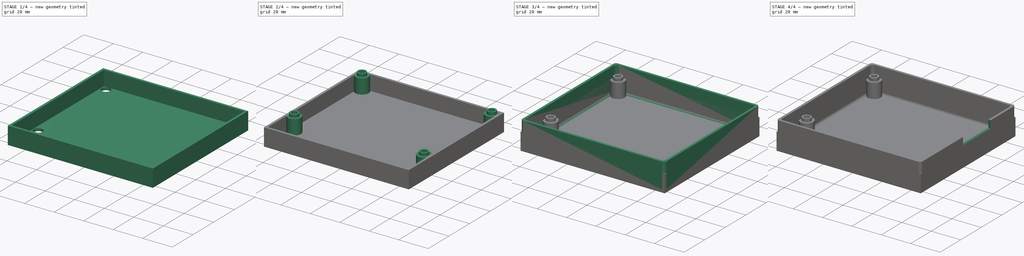
[diagram: build sequence overview — one tinted view per stage of 4, left to right]
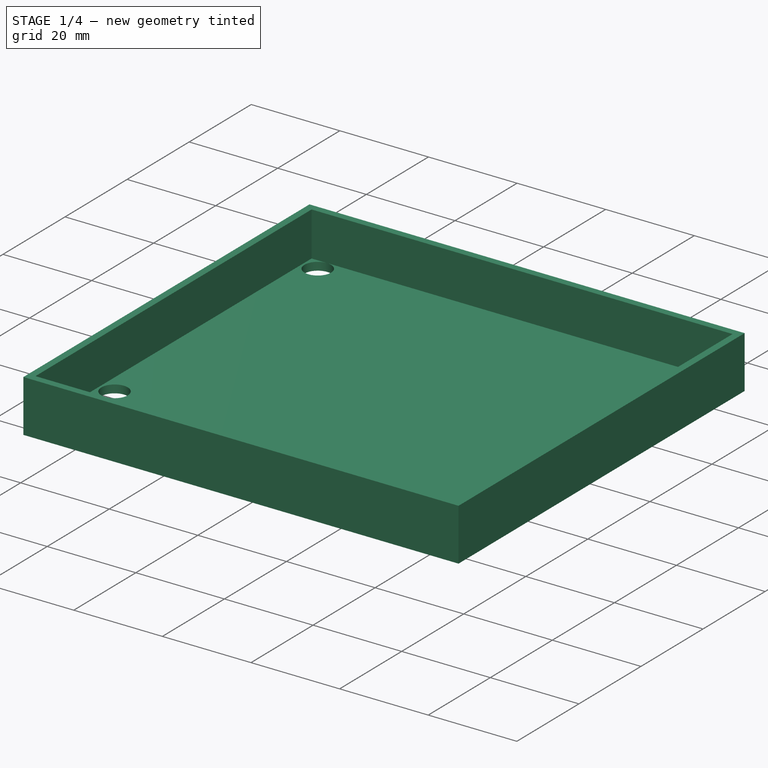
[diagram: stage 1 of 4 — iso view after this stage's code; geometry added in this stage tinted green]
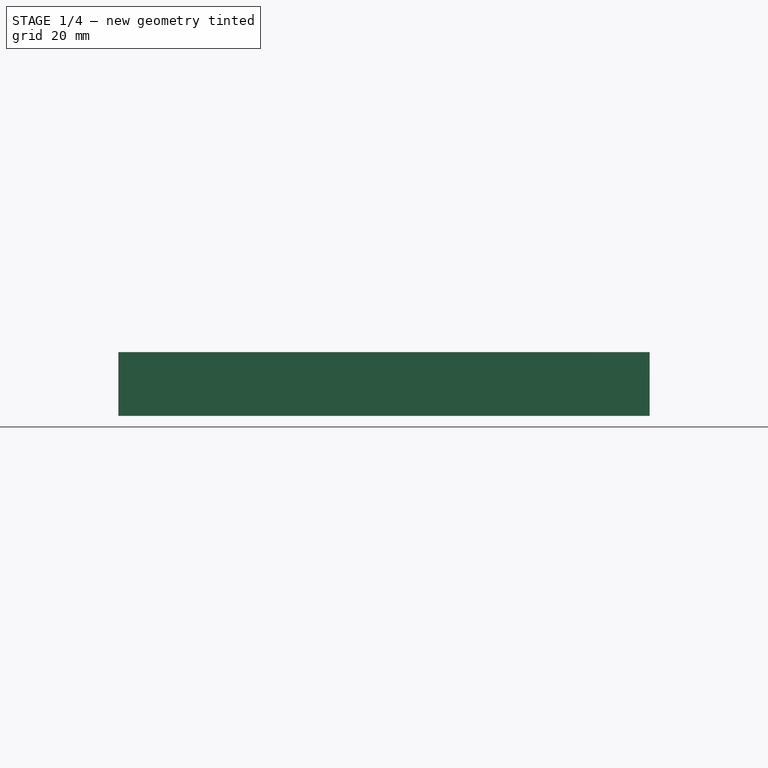
[diagram: stage 1 of 4 — front view after this stage's code; geometry added in this stage tinted green]
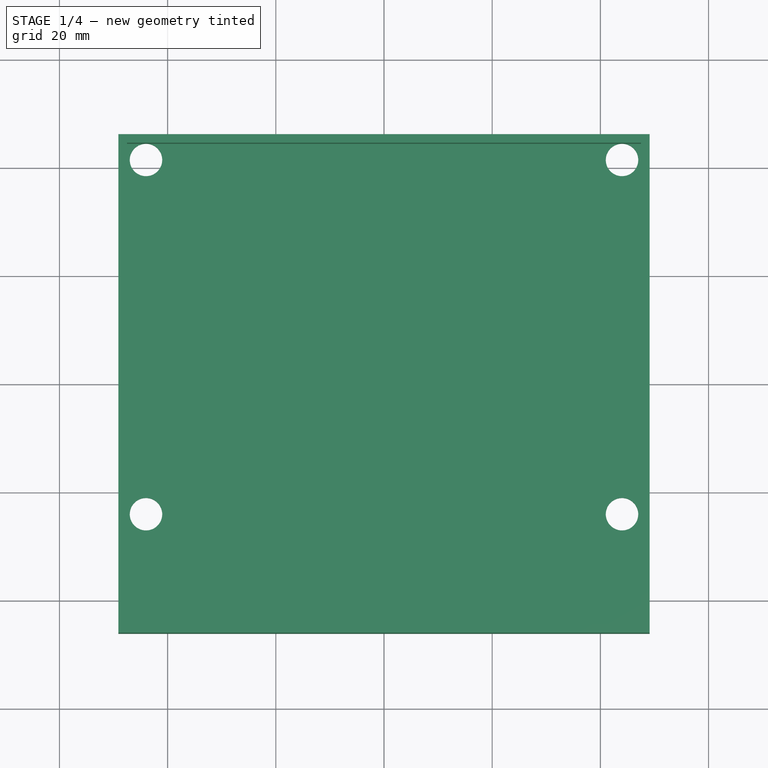
[diagram: stage 1 of 4 — top view after this stage's code; geometry added in this stage tinted green]
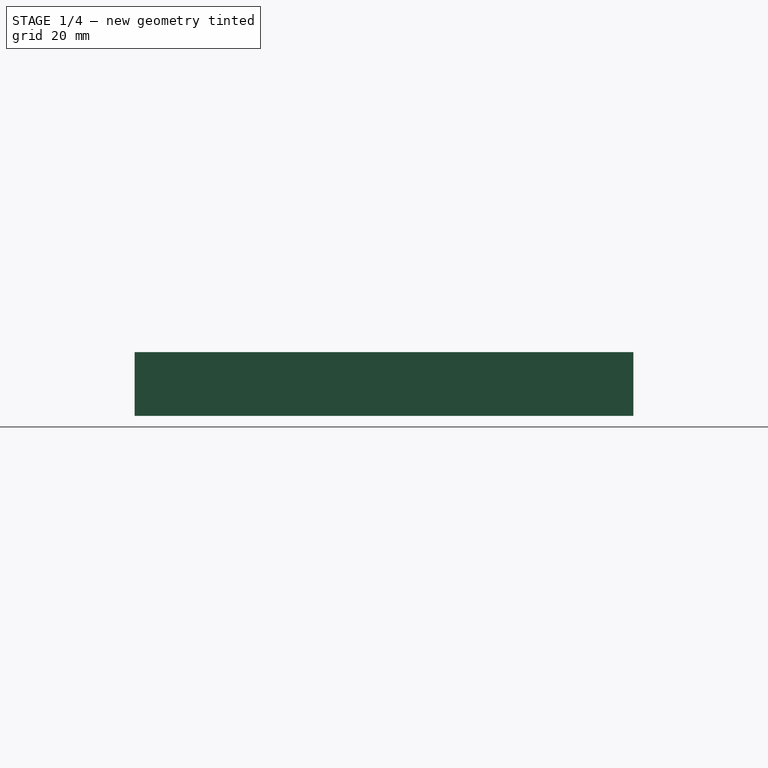
[diagram: stage 1 of 4 — right view after this stage's code; geometry added in this stage tinted green]
FCSTD DOCUMENT  (FreeCAD 0.19R24291 (Git))
Label: 12864_case_1b
License: All rights reserved
LicenseURL: http://en.wikipedia.org/wiki/All_rights_reserved
objects: Sketcher::SketchObject×9, PartDesign::Pad×8, App::DocumentObjectGroup×2, PartDesign::Body×2, Spreadsheet::Sheet×1, PartDesign::Fillet×1, PartDesign::Pocket×1, App::Part×1
note: 31 computed .brp shape members not serialized (recipe doc carries the construction recipe); baked Part::Feature solids carry a one-line shape summary decoded from their .brp

FEATURE [App::DocumentObjectGroup] Group001  label="Back"
FEATURE [Sketcher::SketchObject] Sketch007  label="backpanel"
  FullyConstrained = true
  MapMode = 5
  Support = -> [XY_Plane002]
  expr: Constraints[9] = <<Dimensions>>.PCBHeight / 2 - <<Dimensions>>.HoleDistanceTop
  expr: Constraints[29] = <<Dimensions>>.PCBWidth
  expr: Constraints[30] = <<Dimensions>>.PCBHeight
  expr: Constraints[19] = <<Dimensions>>.PCBWidth + <<Dimensions>>.PCBGap * 2 + <<Dimensions>>.WallThickness * 2
  expr: Constraints[20] = <<Dimensions>>.PCBHeight + <<Dimensions>>.PCBGap * 2 + <<Dimensions>>.WallThickness * 2
  expr: Constraints[40] = <<Dimensions>>.LCDWidth
  expr: Constraints[39] = <<Dimensions>>.LCDHeight
  expr: Constraints[10] = <<Dimensions>>.HoleDistanceV
  expr: Constraints[0] = <<Dimensions>>.HoleDistanceH
  sketch-geometry (18):
    g0: Circle CenterX=-44 CenterY=41.5 CenterZ=0 NormalX=0 NormalY=0 NormalZ=1 AngleXU=0 Radius=3
    g1: Circle CenterX=44 CenterY=41.5 CenterZ=0 NormalX=0 NormalY=0 NormalZ=1 AngleXU=0 Radius=3
    g2: Circle CenterX=44 CenterY=-24 CenterZ=0 NormalX=0 NormalY=0 NormalZ=1 AngleXU=0 Radius=3
    g3: Circle CenterX=-44 CenterY=-24 CenterZ=0 NormalX=0 NormalY=0 NormalZ=1 AngleXU=0 Radius=3
    g4: LineSegment StartX=-44 StartY=41.5 StartZ=0 EndX=44 EndY=41.5 EndZ=0
    g5: LineSegment StartX=-44 StartY=-24 StartZ=0 EndX=44 EndY=-24 EndZ=0
    g6: LineSegment StartX=-49.1 StartY=46.1 StartZ=0 EndX=49.1 EndY=46.1 EndZ=0
    g7: LineSegment StartX=49.1 StartY=46.1 StartZ=0 EndX=49.1 EndY=-46.1 EndZ=0
    g8: LineSegment StartX=49.1 StartY=-46.1 StartZ=0 EndX=-49.1 EndY=-46.1 EndZ=0
    g9: LineSegment StartX=-49.1 StartY=-46.1 StartZ=0 EndX=-49.1 EndY=46.1 EndZ=0
    g10: LineSegment StartX=-46.5 StartY=43.5 StartZ=0 EndX=46.5 EndY=43.5 EndZ=0
    g11: LineSegment StartX=46.5 StartY=43.5 StartZ=0 EndX=46.5 EndY=-43.5 EndZ=0
    g12: LineSegment StartX=46.5 StartY=-43.5 StartZ=0 EndX=-46.5 EndY=-43.5 EndZ=0
    g13: LineSegment StartX=-46.5 StartY=-43.5 StartZ=0 EndX=-46.5 EndY=43.5 EndZ=0
    g14: LineSegment StartX=-39 StartY=34.5 StartZ=0 EndX=39 EndY=34.5 EndZ=0
    g15: LineSegment StartX=39 StartY=34.5 StartZ=0 EndX=39 EndY=-16.5 EndZ=0
    g16: LineSegment StartX=39 StartY=-16.5 StartZ=0 EndX=-39 EndY=-16.5 EndZ=0
    g17: LineSegment StartX=-39 StartY=-16.5 StartZ=0 EndX=-39 EndY=34.5 EndZ=0
  constraints (51):
    c: DistanceX(g0,g1) = 88
    c: Coincident(g4,g0)
    c: Coincident(g4,g1)
    c: Coincident(g5,g3)
    c: Coincident(g5,g2)
    c: Equal(g4,g5)
    c: Equal(g0,g1)
    c: Equal(g1,g2)
    c: Equal(g2,g3)
    c: DistanceY(g-1,g0) = 41.5
    c: DistanceY(g3,g0) = 65.5
    c: Coincident(g6,g7)
    c: Coincident(g7,g8)
    c: Coincident(g8,g9)
    c: Coincident(g9,g6)
    c: Horizontal(g6)
    c: Horizontal(g8)
    c: Vertical(g7)
    c: Vertical(g9)
    c: DistanceX(g6,g6) = 98.2
    c: DistanceY(g9,g9) = 92.2
    c: Coincident(g10,g11)
    c: Coincident(g11,g12)
    c: Coincident(g12,g13)
    c: Coincident(g13,g10)
    c: Horizontal(g10)
    c: Horizontal(g12)
    c: Vertical(g11)
    c: Vertical(g13)
    c: DistanceX(g10,g10) = 93
    c: DistanceY(g13,g13) = 87
    c: Coincident(g14,g15)
    c: Coincident(g15,g16)
    c: Coincident(g16,g17)
    c: Coincident(g17,g14)
    c: Horizontal(g14)
    c: Horizontal(g16)
    c: Vertical(g15)
    c: Vertical(g17)
    c: DistanceY(g17,g17) = 51
    c: DistanceX(g14,g14) = 78
    c: DistanceY(g14,g10) = 9
    c: Symmetric(g0,g1,g-2)
    c: Symmetric(g3,g2,g-2)
    c: Symmetric(g12,g11,g-2)
    c: Symmetric(g6,g6,g-2)
    c: Symmetric(g6,g8,g-1)
    c: Symmetric(g10,g10,g-2)
    c: Symmetric(g10,g12,g-1)
    c: Symmetric(g14,g14,g-2)
    c: Radius(g0) = 3
FEATURE [PartDesign::Pad] Pad006
  AllowMultiFace = false
  Direction = (1,1,1)
  Length = 1.8
  Length2 = 100
  Profile = -> Sketch007
  Type = 0
  expr: Length = Spreadsheet.PanelThickness
FEATURE [Sketcher::SketchObject] Sketch005  label="backwalls"
  FullyConstrained = false
  MapMode = 5
  Placement = pos=(0,0,1.8) rot=(0,0,1;0rad)
  Support = -> [Pad006]
  expr: Constraints[10] = <<Dimensions>>.PCBWidth + 2 * <<Dimensions>>.PCBGap + 2 * <<Dimensions>>.WallThickness
  expr: Constraints[11] = <<Dimensions>>.PCBHeight + 2 * <<Dimensions>>.PCBGap + 2 * <<Dimensions>>.WallThickness
  expr: Constraints[22] = <<Dimensions>>.PCBWidth + 2 * <<Dimensions>>.PCBGap
  expr: Constraints[23] = <<Dimensions>>.PCBHeight + 2 * <<Dimensions>>.PCBGap
  sketch-geometry (8):
    g0: LineSegment StartX=-49.1 StartY=46.1 StartZ=0 EndX=49.1 EndY=46.1 EndZ=0
    g1: LineSegment StartX=49.1 StartY=46.1 StartZ=0 EndX=49.1 EndY=-46.1 EndZ=0
    g2: LineSegment StartX=49.1 StartY=-46.1 StartZ=0 EndX=-49.1 EndY=-46.1 EndZ=0
    g3: LineSegment StartX=-49.1 StartY=-46.1 StartZ=0 EndX=-49.1 EndY=46.1 EndZ=0
    g4: LineSegment StartX=-47.5 StartY=44.5 StartZ=0 EndX=47.5 EndY=44.5 EndZ=0
    g5: LineSegment StartX=47.5 StartY=44.5 StartZ=0 EndX=47.5 EndY=-44.5 EndZ=0
    g6: LineSegment StartX=47.5 StartY=-44.5 StartZ=0 EndX=-47.5 EndY=-44.5 EndZ=0
    g7: LineSegment StartX=-47.5 StartY=-44.5 StartZ=0 EndX=-47.5 EndY=44.5 EndZ=0
  constraints (24):
    c: Coincident(g0,g1)
    c: Coincident(g1,g2)
    c: Coincident(g2,g3)
    c: Coincident(g3,g0)
    c: Horizontal(g0)
    c: Horizontal(g2)
    c: Vertical(g1)
    c: Vertical(g3)
    c: Symmetric(g0,g0,g-2)
    c: Symmetric(g0,g2,g-1)
    c: DistanceX(g0,g0) = 98.2
    c: DistanceY(g3,g3) = 92.2
    c: Coincident(g4,g5)
    c: Coincident(g5,g6)
    c: Coincident(g6,g7)
    c: Coincident(g7,g4)
    c: Horizontal(g4)
    c: Horizontal(g6)
    c: Vertical(g5)
    c: Vertical(g7)
    c: Symmetric(g4,g4,g-2)
    c: Symmetric(g4,g6,g-1)
    c: DistanceX(g4,g4) = 95
    c: DistanceY(g7,g7) = 89
FEATURE [PartDesign::Pad] Pad007
  AllowMultiFace = false
  BaseFeature = -> Pad006
  Direction = (1,1,1)
  Length = 10
  Length2 = 100
  Profile = -> Sketch005
  Type = 0
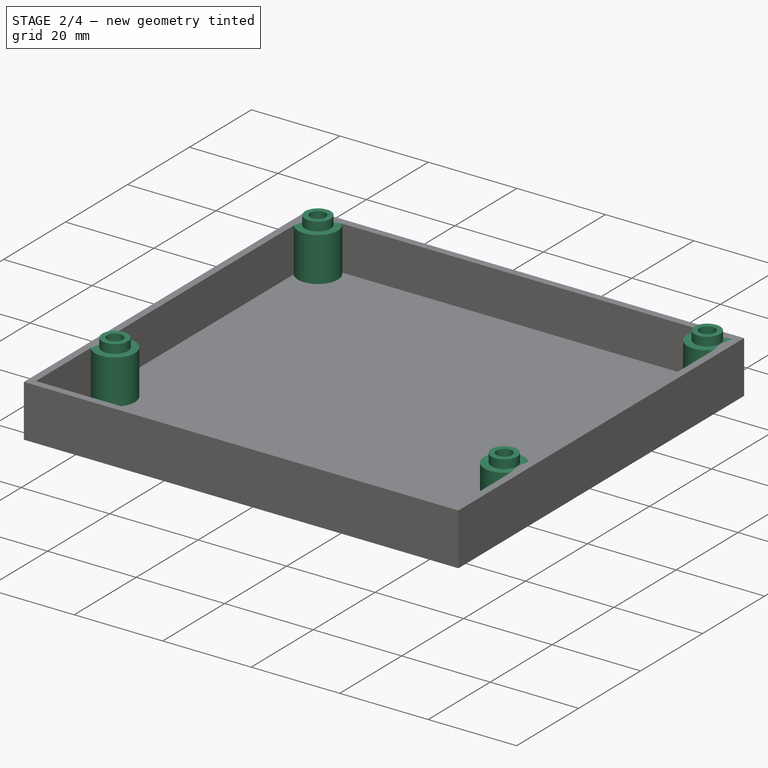
[diagram: stage 2 of 4 — iso view after this stage's code; geometry added in this stage tinted green]
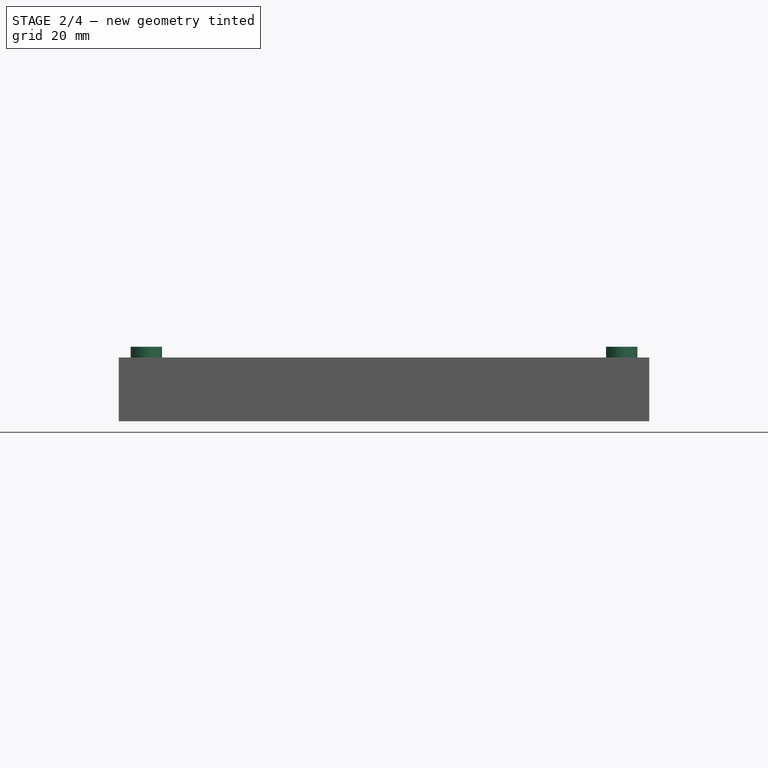
[diagram: stage 2 of 4 — front view after this stage's code; geometry added in this stage tinted green]
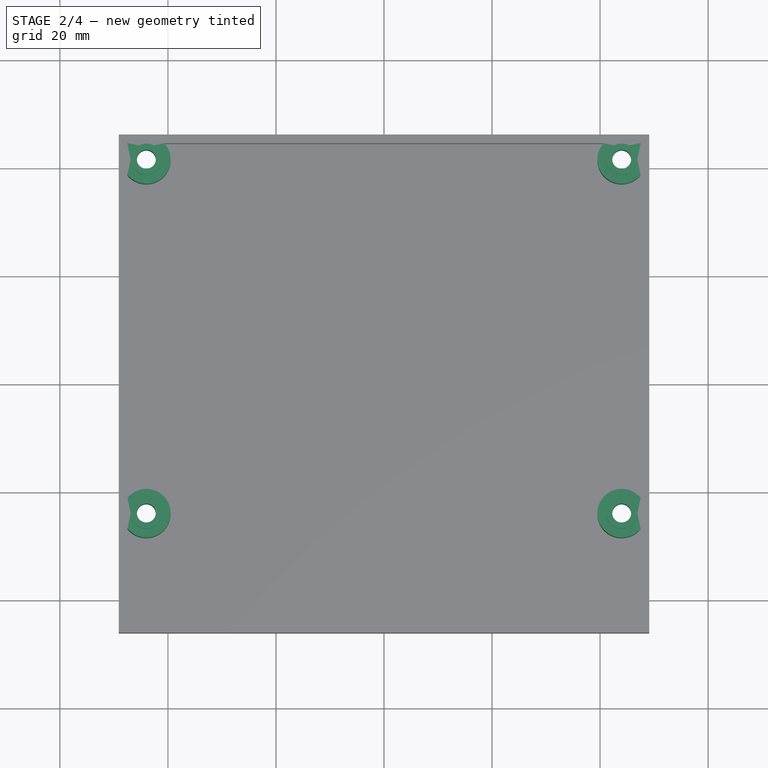
[diagram: stage 2 of 4 — top view after this stage's code; geometry added in this stage tinted green]
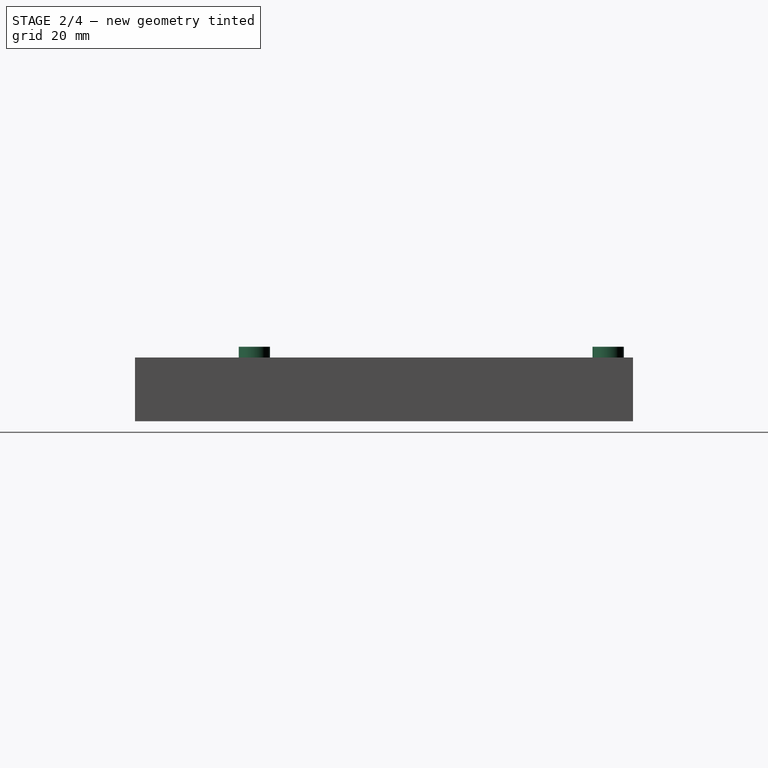
[diagram: stage 2 of 4 — right view after this stage's code; geometry added in this stage tinted green]
FEATURE [Sketcher::SketchObject] Sketch008  label="backnuts1"
  FullyConstrained = false
  MapMode = 5
  Placement = pos=(0,0,1.8) rot=(0,0,1;0rad)
  Support = -> [Pad007]
  expr: Constraints[20] = <<Dimensions>>.PCBHeight / 2 - <<Dimensions>>.HoleDistanceTop
  expr: Constraints[21] = <<Dimensions>>.HoleDistanceV
  expr: Constraints[2] = <<Dimensions>>.HoleDistanceH
  sketch-geometry (10):
    g0: Circle CenterX=-44 CenterY=41.5 CenterZ=0 NormalX=0 NormalY=0 NormalZ=1 AngleXU=0 Radius=4.5
    g1: Circle CenterX=44 CenterY=41.5 CenterZ=0 NormalX=0 NormalY=0 NormalZ=1 AngleXU=0 Radius=4.5
    g2: Circle CenterX=44 CenterY=-24 CenterZ=0 NormalX=0 NormalY=0 NormalZ=1 AngleXU=0 Radius=4.5
    g3: Circle CenterX=-44 CenterY=-24 CenterZ=0 NormalX=0 NormalY=0 NormalZ=1 AngleXU=0 Radius=4.5
    g4: LineSegment StartX=-44 StartY=41.5 StartZ=0 EndX=44 EndY=41.5 EndZ=0
    g5: LineSegment StartX=-44 StartY=-24 StartZ=0 EndX=44 EndY=-24 EndZ=0
    g6: Circle CenterX=-44 CenterY=41.5 CenterZ=0 NormalX=0 NormalY=0 NormalZ=1 AngleXU=0 Radius=3
    g7: Circle CenterX=44 CenterY=41.5 CenterZ=0 NormalX=0 NormalY=0 NormalZ=1 AngleXU=0 Radius=3
    g8: Circle CenterX=44 CenterY=-24 CenterZ=0 NormalX=0 NormalY=0 NormalZ=1 AngleXU=0 Radius=3
    g9: Circle CenterX=-44 CenterY=-24 CenterZ=0 NormalX=0 NormalY=0 NormalZ=1 AngleXU=0 Radius=3
  constraints (22):
    c: Symmetric(g0,g1,g-2)
    c: Symmetric(g3,g2,g-2)
    c: DistanceX(g0,g1) = 88
    c: Coincident(g4,g0)
    c: Coincident(g4,g1)
    c: Coincident(g5,g3)
    c: Coincident(g5,g2)
    c: Equal(g4,g5)
    c: Equal(g0,g1)
    c: Equal(g1,g2)
    c: Equal(g2,g3)
    c: Radius(g0) = 4.5
    c: Coincident(g6,g0)
    c: Coincident(g7,g1)
    c: Coincident(g8,g2)
    c: Coincident(g9,g3)
    c: Equal(g6,g7)
    c: Equal(g7,g8)
    c: Equal(g8,g9)
    c: Radius(g6) = 3
    c: DistanceY(g-1,g0) = 41.5
    c: DistanceY(g3,g0) = 65.5
FEATURE [PartDesign::Pad] Pad008
  AllowMultiFace = false
  BaseFeature = -> Pad007
  Direction = (1,1,1)
  Length = 1.2
  Length2 = 100
  Profile = -> Sketch008
  Type = 0
  expr: Length = 3 - <<Dimensions>>.PanelThickness
FEATURE [Sketcher::SketchObject] Sketch009  label="backnuts2"
  FullyConstrained = false
  MapMode = 5
  Placement = pos=(0,0,3) rot=(0,0,1;0rad)
  Support = -> [Pad008]
  expr: Constraints[20] = <<Dimensions>>.PCBHeight / 2 - <<Dimensions>>.HoleDistanceTop
  expr: Constraints[21] = <<Dimensions>>.HoleDistanceV
  expr: Constraints[2] = <<Dimensions>>.HoleDistanceH
  sketch-geometry (10):
    g0: Circle CenterX=-44 CenterY=41.5 CenterZ=0 NormalX=0 NormalY=0 NormalZ=1 AngleXU=0 Radius=4.5
    g1: Circle CenterX=44 CenterY=41.5 CenterZ=0 NormalX=0 NormalY=0 NormalZ=1 AngleXU=0 Radius=4.5
    g2: Circle CenterX=44 CenterY=-24 CenterZ=0 NormalX=0 NormalY=0 NormalZ=1 AngleXU=0 Radius=4.5
    g3: Circle CenterX=-44 CenterY=-24 CenterZ=0 NormalX=0 NormalY=0 NormalZ=1 AngleXU=0 Radius=4.5
    g4: LineSegment StartX=-44 StartY=41.5 StartZ=0 EndX=44 EndY=41.5 EndZ=0
    g5: LineSegment StartX=-44 StartY=-24 StartZ=0 EndX=44 EndY=-24 EndZ=0
    g6: Circle CenterX=-44 CenterY=41.5 CenterZ=0 NormalX=0 NormalY=0 NormalZ=1 AngleXU=0 Radius=1.75
    g7: Circle CenterX=44 CenterY=41.5 CenterZ=0 NormalX=0 NormalY=0 NormalZ=1 AngleXU=0 Radius=1.75
    g8: Circle CenterX=44 CenterY=-24 CenterZ=0 NormalX=0 NormalY=0 NormalZ=1 AngleXU=0 Radius=1.75
    g9: Circle CenterX=-44 CenterY=-24 CenterZ=0 NormalX=0 NormalY=0 NormalZ=1 AngleXU=0 Radius=1.75
  constraints (22):
    c: Symmetric(g0,g1,g-2)
    c: Symmetric(g3,g2,g-2)
    c: DistanceX(g0,g1) = 88
    c: Coincident(g4,g0)
    c: Coincident(g4,g1)
    c: Coincident(g5,g3)
    c: Coincident(g5,g2)
    c: Equal(g4,g5)
    c: Equal(g0,g1)
    c: Equal(g1,g2)
    c: Equal(g2,g3)
    c: Radius(g0) = 4.5
    c: Coincident(g6,g0)
    c: Coincident(g7,g1)
    c: Coincident(g8,g2)
    c: Coincident(g9,g3)
    c: Equal(g6,g7)
    c: Equal(g7,g8)
    c: Equal(g8,g9)
    c: Radius(g6) = 1.75
    c: DistanceY(g-1,g0) = 41.5
    c: DistanceY(g3,g0) = 65.5
FEATURE [PartDesign::Pad] Pad009
  AllowMultiFace = false
  BaseFeature = -> Pad008
  Direction = (1,1,1)
  Length = 10
  Length2 = 100
  Profile = -> Sketch009
  Type = 3
  UpToFace = -> Pad008 [Face20]
FEATURE [Sketcher::SketchObject] Sketch006  label="backnuts3"
  FullyConstrained = false
  MapMode = 5
  Placement = pos=(0,0,11.8) rot=(0,0,1;0rad)
  Support = -> [Pad009]
  expr: Constraints[2] = <<Dimensions>>.HoleDistanceH
  expr: Constraints[20] = <<Dimensions>>.PCBHeight / 2 - <<Dimensions>>.HoleDistanceTop
  expr: Constraints[21] = <<Dimensions>>.HoleDistanceV
  sketch-geometry (10):
    g0: Circle CenterX=-44 CenterY=41.5 CenterZ=0 NormalX=0 NormalY=0 NormalZ=1 AngleXU=0 Radius=2.9
    g1: Circle CenterX=44 CenterY=41.5 CenterZ=0 NormalX=0 NormalY=0 NormalZ=1 AngleXU=0 Radius=2.9
    g2: Circle CenterX=44 CenterY=-24 CenterZ=0 NormalX=0 NormalY=0 NormalZ=1 AngleXU=0 Radius=2.9
    g3: Circle CenterX=-44 CenterY=-24 CenterZ=0 NormalX=0 NormalY=0 NormalZ=1 AngleXU=0 Radius=2.9
    g4: LineSegment StartX=-44 StartY=41.5 StartZ=0 EndX=44 EndY=41.5 EndZ=0
    g5: LineSegment StartX=-44 StartY=-24 StartZ=0 EndX=44 EndY=-24 EndZ=0
    g6: Circle CenterX=-44 CenterY=41.5 CenterZ=0 NormalX=0 NormalY=0 NormalZ=1 AngleXU=0 Radius=1.75
    g7: Circle CenterX=44 CenterY=41.5 CenterZ=0 NormalX=0 NormalY=0 NormalZ=1 AngleXU=0 Radius=1.75
    g8: Circle CenterX=44 CenterY=-24 CenterZ=0 NormalX=0 NormalY=0 NormalZ=1 AngleXU=0 Radius=1.75
    g9: Circle CenterX=-44 CenterY=-24 CenterZ=0 NormalX=0 NormalY=0 NormalZ=1 AngleXU=0 Radius=1.75
  constraints (22):
    c: Symmetric(g0,g1,g-2)
    c: Symmetric(g3,g2,g-2)
    c: DistanceX(g0,g1) = 88
    c: Coincident(g4,g0)
    c: Coincident(g4,g1)
    c: Coincident(g5,g3)
    c: Coincident(g5,g2)
    c: Equal(g4,g5)
    c: Equal(g0,g1)
    c: Equal(g1,g2)
    c: Equal(g2,g3)
    c: Radius(g0) = 2.9
    c: Coincident(g6,g0)
    c: Coincident(g7,g1)
    c: Coincident(g8,g2)
    c: Coincident(g9,g3)
    c: Equal(g6,g7)
    c: Equal(g7,g8)
    c: Equal(g8,g9)
    c: Radius(g6) = 1.75
    c: DistanceY(g-1,g0) = 41.5
    c: DistanceY(g3,g0) = 65.5
FEATURE [PartDesign::Pad] Pad010
  AllowMultiFace = false
  BaseFeature = -> Pad009
  Direction = (1,1,1)
  Length = 2
  Length2 = 100
  Profile = -> Sketch006
  Type = 0
FEATURE [PartDesign::Body] PocketBody
  Group = -> [Sketch,Pad,Sketch001,Pad001,Fillet,Sketch002,Pad002,Sketch003,Pocket]
  Origin = -> Origin001
  Tip = -> Pocket
FEATURE [PartDesign::Body] Pad010Body
  Group = -> [Sketch007,Pad006,Sketch005,Pad007,Sketch008,Pad008,Sketch009,Pad009,Sketch006,Pad010]
  Origin = -> Origin002
  Tip = -> Pad010
FEATURE [App::Part] Part
  Group = -> [PocketBody,Pad010Body]
  Origin = -> Origin
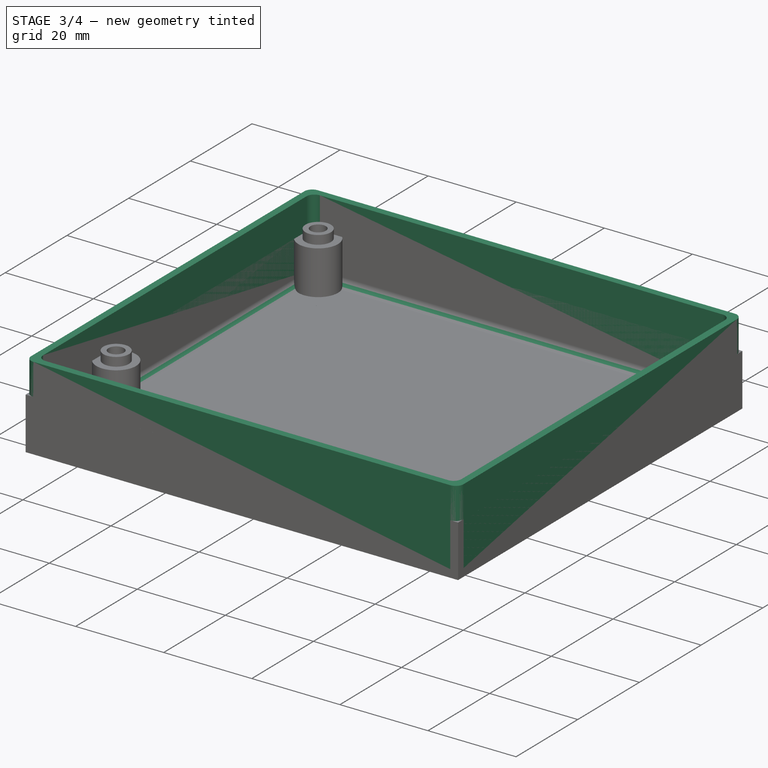
[diagram: stage 3 of 4 — iso view after this stage's code; geometry added in this stage tinted green]
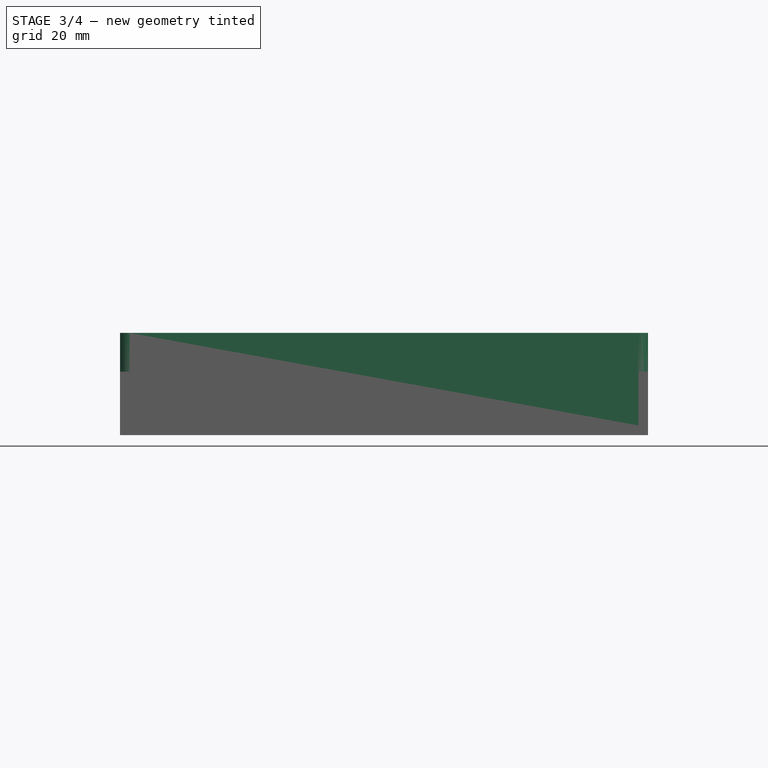
[diagram: stage 3 of 4 — front view after this stage's code; geometry added in this stage tinted green]
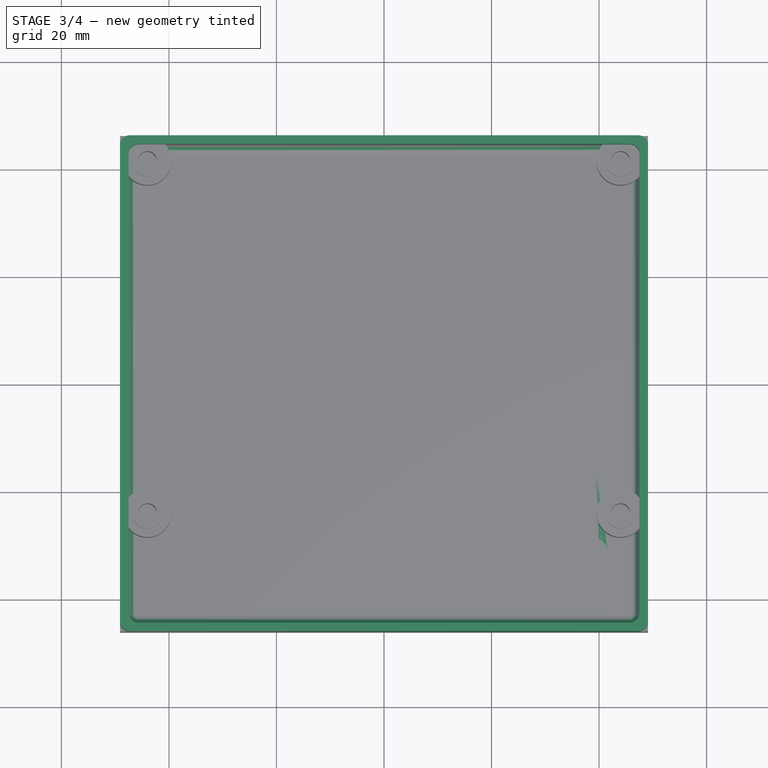
[diagram: stage 3 of 4 — top view after this stage's code; geometry added in this stage tinted green]
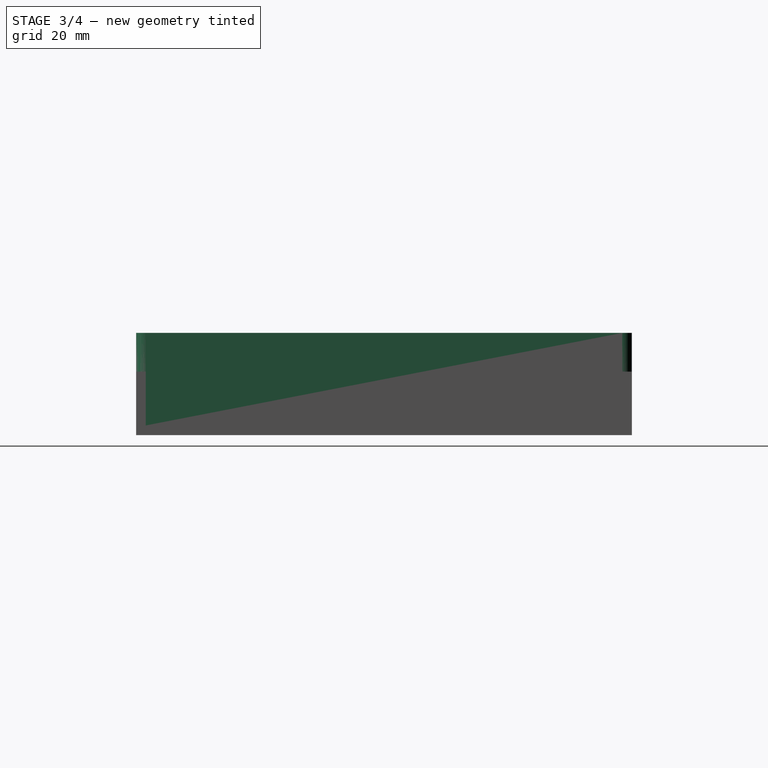
[diagram: stage 3 of 4 — right view after this stage's code; geometry added in this stage tinted green]
FEATURE [App::DocumentObjectGroup] Group  label="Front"
FEATURE [Sketcher::SketchObject] Sketch  label="frontpanel"
  FullyConstrained = true
  MapMode = 5
  Support = -> [XY_Plane001]
  expr: Constraints[19] = <<Dimensions>>.LCDHeight + <<Dimensions>>.LCDGap * 2
  expr: Constraints[28] = <<Dimensions>>.PCBWidth
  expr: Constraints[88] = <<Dimensions>>.LCDHeight
  expr: Constraints[29] = <<Dimensions>>.PCBHeight
  expr: Constraints[89] = <<Dimensions>>.LCDGap
  expr: Constraints[18] = <<Dimensions>>.LCDWidth + <<Dimensions>>.LCDGap * 2
  expr: Constraints[91] = <<Dimensions>>.LCDWidth
  expr: Constraints[9] = <<Dimensions>>.PCBHeight + <<Dimensions>>.PCBGap * 2 + <<Dimensions>>.WallThickness * 2
  expr: Constraints[90] = <<Dimensions>>.LCDGap
  expr: Constraints[8] = <<Dimensions>>.PCBWidth + <<Dimensions>>.PCBGap * 2 + <<Dimensions>>.WallThickness * 2
  sketch-geometry (34):
    g0: LineSegment StartX=-49.1 StartY=46.1 StartZ=0 EndX=49.1 EndY=46.1 EndZ=0
    g1: LineSegment StartX=49.1 StartY=46.1 StartZ=0 EndX=49.1 EndY=-46.1 EndZ=0
    g2: LineSegment StartX=49.1 StartY=-46.1 StartZ=0 EndX=-49.1 EndY=-46.1 EndZ=0
    g3: LineSegment StartX=-49.1 StartY=-46.1 StartZ=0 EndX=-49.1 EndY=46.1 EndZ=0
    g4: LineSegment StartX=-39.5 StartY=35 StartZ=0 EndX=39.5 EndY=35 EndZ=0
    g5: LineSegment StartX=39.5 StartY=35 StartZ=0 EndX=39.5 EndY=-17 EndZ=0
    g6: LineSegment StartX=39.5 StartY=-17 StartZ=0 EndX=-39.5 EndY=-17 EndZ=0
    g7: LineSegment StartX=-39.5 StartY=-17 StartZ=0 EndX=-39.5 EndY=35 EndZ=0
    g8: Circle CenterX=-37 CenterY=-35 CenterZ=0 NormalX=0 NormalY=0 NormalZ=1 AngleXU=0 Radius=5
    g9: LineSegment StartX=-46.5 StartY=43.5 StartZ=0 EndX=46.5 EndY=43.5 EndZ=0
    g10: LineSegment StartX=46.5 StartY=43.5 StartZ=0 EndX=46.5 EndY=-43.5 EndZ=0
    g11: LineSegment StartX=46.5 StartY=-43.5 StartZ=0 EndX=-46.5 EndY=-43.5 EndZ=0
    g12: LineSegment StartX=-46.5 StartY=-43.5 StartZ=0 EndX=-46.5 EndY=43.5 EndZ=0
    g13: Circle CenterX=-18.5 CenterY=-35 CenterZ=0 NormalX=0 NormalY=0 NormalZ=1 AngleXU=0 Radius=6
    g14: LineSegment StartX=-49.1 StartY=-35 StartZ=0 EndX=49.1 EndY=-35 EndZ=0
    g15: Circle CenterX=-4 CenterY=-35 CenterZ=0 NormalX=0 NormalY=0 NormalZ=1 AngleXU=0 Radius=3.2
    g16: Circle CenterX=-23.1 CenterY=-35 CenterZ=0 NormalX=0 NormalY=0 NormalZ=1 AngleXU=0 Radius=1.4
    g17: LineSegment StartX=-18.5 StartY=-29 StartZ=0 EndX=-18.5 EndY=-41 EndZ=0
    g18: Circle CenterX=-18.5 CenterY=-30.4 CenterZ=0 NormalX=0 NormalY=0 NormalZ=1 AngleXU=0 Radius=1.4
    g19: Circle CenterX=-13.9 CenterY=-35 CenterZ=0 NormalX=0 NormalY=0 NormalZ=1 AngleXU=0 Radius=1.4
    g20: Circle CenterX=-18.5 CenterY=-39.6 CenterZ=0 NormalX=0 NormalY=0 NormalZ=1 AngleXU=0 Radius=1.4
    g21: Circle CenterX=-18.5 CenterY=-35 CenterZ=0 NormalX=0 NormalY=0 NormalZ=1 AngleXU=0 Radius=2.2
    g22: LineSegment StartX=-22.7426 StartY=-30.7574 StartZ=0 EndX=-14.2574 EndY=-39.2426 EndZ=0
    g23: LineSegment StartX=-22.7426 StartY=-39.2426 StartZ=0 EndX=-14.2574 EndY=-30.7574 EndZ=0
    g24: Circle CenterX=-18.5 CenterY=-35 CenterZ=0 NormalX=0 NormalY=0 NormalZ=1 AngleXU=0 Radius=4.6
    g25: Circle CenterX=-21.7527 CenterY=-31.7473 CenterZ=0 NormalX=0 NormalY=0 NormalZ=1 AngleXU=0 Radius=1.4
    g26: Circle CenterX=-15.2473 CenterY=-31.7473 CenterZ=0 NormalX=0 NormalY=0 NormalZ=1 AngleXU=0 Radius=1.4
    g27: Circle CenterX=-15.2473 CenterY=-38.2527 CenterZ=0 NormalX=0 NormalY=0 NormalZ=1 AngleXU=0 Radius=1.4
    g28: Circle CenterX=-21.7527 CenterY=-38.2527 CenterZ=0 NormalX=0 NormalY=0 NormalZ=1 AngleXU=0 Radius=1.4
    g29: LineSegment StartX=-39 StartY=34.5 StartZ=0 EndX=39 EndY=34.5 EndZ=0
    g30: LineSegment StartX=39 StartY=34.5 StartZ=0 EndX=39 EndY=-16.5 EndZ=0
    g31: LineSegment StartX=39 StartY=-16.5 StartZ=0 EndX=-39 EndY=-16.5 EndZ=0
    g32: LineSegment StartX=-39 StartY=-16.5 StartZ=0 EndX=-39 EndY=34.5 EndZ=0
    g33: Circle CenterX=38.5 CenterY=-31.5 CenterZ=0 NormalX=0 NormalY=0 NormalZ=1 AngleXU=0 Radius=3.2
  constraints (97):
    c: Coincident(g0,g1)
    c: Coincident(g1,g2)
    c: Coincident(g2,g3)
    c: Coincident(g3,g0)
    c: Horizontal(g2)
    c: Vertical(g1)
    c: Symmetric(g0,g0,g-2)
    c: Symmetric(g0,g2,g-1)
    c: DistanceX(g0,g0) = 98.2
    c: DistanceY(g3,g3) = 92.2
    c: Coincident(g4,g5)
    c: Coincident(g5,g6)
    c: Coincident(g6,g7)
    c: Coincident(g7,g4)
    c: Horizontal(g6)
    c: Vertical(g5)
    c: Vertical(g7)
    c: Symmetric(g4,g4,g-2)
    c: DistanceX(g4,g4) = 79
    c: DistanceY(g7,g7) = 52
    c: Coincident(g9,g10)
    c: Coincident(g10,g11)
    c: Coincident(g11,g12)
    c: Coincident(g12,g9)
    c: Horizontal(g11)
    c: Vertical(g10)
    c: Symmetric(g9,g9,g-2)
    c: Symmetric(g9,g11,g-1)
    c: DistanceX(g9,g9) = 93
    c: DistanceY(g12,g12) = 87
    c: DistanceX(g11,g8) = 9.5
    c: DistanceY(g11,g8) = 8.5
    c: Radius(g8) = 5
    c: PointOnObject(g14,g3)
    c: PointOnObject(g14,g1)
    c: Horizontal(g14)
    c: PointOnObject(g8,g14)
    c: PointOnObject(g13,g14)
    c: DistanceX(g11,g13) = 28
    c: Radius(g13) = 6
    c: PointOnObject(g15,g14)
    c: Radius(g15) = 3.2
    c: PointOnObject(g16,g14)
    c: Tangent(g13,g16)
    c: Radius(g16) = 1.4
    c: PointOnObject(g17,g13)
    c: PointOnObject(g17,g13)
    c: Vertical(g17)
    c: PointOnObject(g13,g17)
    c: PointOnObject(g18,g17)
    c: Tangent(g18,g13)
    c: Equal(g16,g18)
    c: PointOnObject(g19,g14)
    c: Tangent(g19,g13)
    c: Equal(g16,g19)
    c: PointOnObject(g20,g17)
    c: Tangent(g20,g13)
    c: Equal(g16,g20)
    c: Coincident(g21,g13)
    c: PointOnObject(g22,g13)
    c: PointOnObject(g22,g13)
    c: Symmetric(g18,g16,g22)
    c: PointOnObject(g23,g13)
    c: PointOnObject(g23,g13)
    c: Symmetric(g19,g18,g23)
    c: Coincident(g24,g13)
    c: PointOnObject(g19,g24)
    c: PointOnObject(g25,g22)
    c: PointOnObject(g26,g23)
    c: PointOnObject(g27,g22)
    c: PointOnObject(g28,g24)
    c: PointOnObject(g28,g23)
    c: PointOnObject(g27,g24)
    c: PointOnObject(g26,g24)
    c: PointOnObject(g25,g24)
    c: Equal(g16,g25)
    c: Equal(g25,g26)
    c: Equal(g26,g27)
    c: Equal(g27,g28)
    c: Radius(g21) = 2.2
    c: Coincident(g29,g30)
    c: Coincident(g30,g31)
    c: Coincident(g31,g32)
    c: Coincident(g32,g29)
    c: Horizontal(g29)
    c: Horizontal(g31)
    c: Vertical(g30)
    c: Vertical(g32)
    c: DistanceY(g32,g32) = 51
    c: DistanceY(g6,g31) = 0.5
    c: DistanceX(g6,g31) = 0.5
    c: DistanceX(g29,g29) = 78
    c: DistanceY(g29,g9) = 9
    c: DistanceX(g11,g15) = 42.5
    c: DistanceX(g33,g10) = 8
    c: DistanceY(g10,g33) = 12
    c: Radius(g33) = 3.2
FEATURE [Spreadsheet::Sheet] Spreadsheet  label="Dimensions"
  cells = B4=PCBWidth; C4(PCBWidth)=93; B5=PCBHeight; C5(PCBHeight)=87; B6=PCBGap; C6(PCBGap)=1; B7=WallThickness; C7(WallThickness)=1.6; B8=PanelThickness; C8(PanelThickness)=1.8; B9=LCDWidth; C9(LCDWidth)=78; B10=LCDHeight; C10(LCDHeight)=51; B11=LCDGap; C11(LCDGap)=0.5; B12=HoleDistanceH; C12(HoleDistanceH)=88; B13=HoleDistanceV; C13(HoleDistanceV)=65.5; B14=HoleDistanceTop; C14(HoleDistanceTop)=2
FEATURE [PartDesign::Pad] Pad
  AllowMultiFace = false
  Direction = (1,1,1)
  Length = 1.8
  Length2 = 100
  Profile = -> Sketch
  Type = 0
  expr: Length = Spreadsheet.PanelThickness
FEATURE [Sketcher::SketchObject] Sketch001  label="walls"
  FullyConstrained = true
  MapMode = 5
  Placement = pos=(0,0,1.8) rot=(0,0,1;0rad)
  Support = -> [Pad]
  expr: Constraints[8] = <<Dimensions>>.PCBWidth + 2 * <<Dimensions>>.PCBGap + 2 * <<Dimensions>>.WallThickness
  expr: Constraints[9] = <<Dimensions>>.PCBHeight + 2 * <<Dimensions>>.PCBGap + 2 * <<Dimensions>>.WallThickness
  expr: Constraints[18] = <<Dimensions>>.PCBWidth + 2 * <<Dimensions>>.PCBGap
  expr: Constraints[19] = <<Dimensions>>.PCBHeight + 2 * <<Dimensions>>.PCBGap
  sketch-geometry (8):
    g0: LineSegment StartX=-49.1 StartY=46.1 StartZ=0 EndX=49.1 EndY=46.1 EndZ=0
    g1: LineSegment StartX=49.1 StartY=46.1 StartZ=0 EndX=49.1 EndY=-46.1 EndZ=0
    g2: LineSegment StartX=49.1 StartY=-46.1 StartZ=0 EndX=-49.1 EndY=-46.1 EndZ=0
    g3: LineSegment StartX=-49.1 StartY=-46.1 StartZ=0 EndX=-49.1 EndY=46.1 EndZ=0
    g4: LineSegment StartX=-47.5 StartY=44.5 StartZ=0 EndX=47.5 EndY=44.5 EndZ=0
    g5: LineSegment StartX=47.5 StartY=44.5 StartZ=0 EndX=47.5 EndY=-44.5 EndZ=0
    g6: LineSegment StartX=47.5 StartY=-44.5 StartZ=0 EndX=-47.5 EndY=-44.5 EndZ=0
    g7: LineSegment StartX=-47.5 StartY=-44.5 StartZ=0 EndX=-47.5 EndY=44.5 EndZ=0
  constraints (20):
    c: Coincident(g0,g1)
    c: Coincident(g1,g2)
    c: Coincident(g2,g3)
    c: Coincident(g3,g0)
    c: Horizontal(g2)
    c: Vertical(g1)
    c: Symmetric(g0,g0,g-2)
    c: Symmetric(g0,g2,g-1)
    c: DistanceX(g0,g0) = 98.2
    c: DistanceY(g3,g3) = 92.2
    c: Coincident(g4,g5)
    c: Coincident(g5,g6)
    c: Coincident(g6,g7)
    c: Coincident(g7,g4)
    c: Horizontal(g6)
    c: Vertical(g5)
    c: Symmetric(g4,g4,g-2)
    c: Symmetric(g4,g6,g-1)
    c: DistanceX(g4,g4) = 95
    c: DistanceY(g7,g7) = 89
FEATURE [PartDesign::Pad] Pad001  label="Walls"
  AllowMultiFace = false
  BaseFeature = -> Pad
  Direction = (1,1,1)
  Length = 17.2
  Length2 = 100
  Profile = -> Sketch001
  Refine = true
  Type = 0
  expr: Length = 19 - Spreadsheet.PanelThickness
FEATURE [Sketcher::SketchObject] Sketch002  label="nuts"
  FullyConstrained = true
  MapMode = 5
  Support = -> [XY_Plane001]
  expr: Constraints[2] = <<Dimensions>>.HoleDistanceH
  expr: Constraints[20] = <<Dimensions>>.PCBHeight / 2 - <<Dimensions>>.HoleDistanceTop
  expr: Constraints[21] = <<Dimensions>>.HoleDistanceV
  sketch-geometry (10):
    g0: Circle CenterX=-44 CenterY=41.5 CenterZ=0 NormalX=0 NormalY=0 NormalZ=1 AngleXU=0 Radius=4
    g1: Circle CenterX=44 CenterY=41.5 CenterZ=0 NormalX=0 NormalY=0 NormalZ=1 AngleXU=0 Radius=4
    g2: Circle CenterX=44 CenterY=-24 CenterZ=0 NormalX=0 NormalY=0 NormalZ=1 AngleXU=0 Radius=4
    g3: Circle CenterX=-44 CenterY=-24 CenterZ=0 NormalX=0 NormalY=0 NormalZ=1 AngleXU=0 Radius=4
    g4: LineSegment StartX=-44 StartY=41.5 StartZ=0 EndX=44 EndY=41.5 EndZ=0
    g5: LineSegment StartX=-44 StartY=-24 StartZ=0 EndX=44 EndY=-24 EndZ=0
    g6: Circle CenterX=-44 CenterY=41.5 CenterZ=0 NormalX=0 NormalY=0 NormalZ=1 AngleXU=0 Radius=1.58
    g7: Circle CenterX=44 CenterY=41.5 CenterZ=0 NormalX=0 NormalY=0 NormalZ=1 AngleXU=0 Radius=1.58
    g8: Circle CenterX=44 CenterY=-24 CenterZ=0 NormalX=0 NormalY=0 NormalZ=1 AngleXU=0 Radius=1.58
    g9: Circle CenterX=-44 CenterY=-24 CenterZ=0 NormalX=0 NormalY=0 NormalZ=1 AngleXU=0 Radius=1.58
  constraints (22):
    c: Symmetric(g0,g1,g-2)
    c: Symmetric(g3,g2,g-2)
    c: DistanceX(g0,g1) = 88
    c: Coincident(g4,g0)
    c: Coincident(g4,g1)
    c: Coincident(g5,g3)
    c: Coincident(g5,g2)
    c: Equal(g4,g5)
    c: Equal(g0,g1)
    c: Equal(g1,g2)
    c: Equal(g2,g3)
    c: Radius(g0) = 4
    c: Coincident(g6,g0)
    c: Coincident(g7,g1)
    c: Coincident(g8,g2)
    c: Coincident(g9,g3)
    c: Equal(g6,g7)
    c: Equal(g7,g8)
    c: Equal(g8,g9)
    c: Radius(g6) = 1.58
    c: DistanceY(g-1,g0) = 41.5
    c: DistanceY(g3,g0) = 65.5
FEATURE [PartDesign::Fillet] Fillet
  Base = -> Pad001 [Edge1,Edge2,Edge70,Edge69,Edge4,Edge3,Edge71,Edge72,Edge67,Edge54,Edge53,Edge56,Edge57,Edge58,Edge55,Edge68]
  BaseFeature = -> Pad001
  Radius = 1.79
  SupportTransform = false
  expr: Radius = Spreadsheet.PanelThickness - 0.01
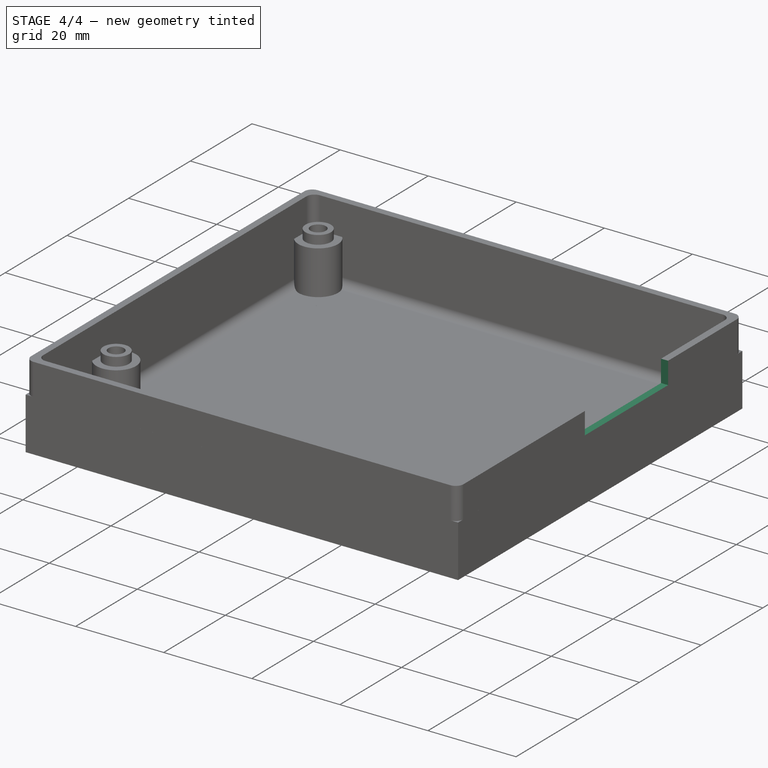
[diagram: stage 4 of 4 — iso view after this stage's code; geometry added in this stage tinted green]
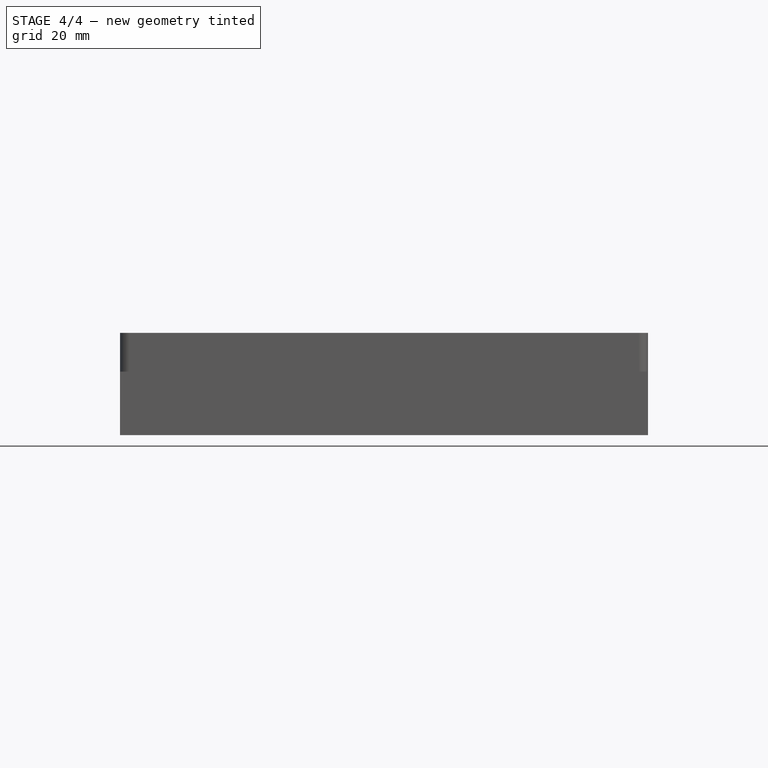
[diagram: stage 4 of 4 — front view after this stage's code; geometry added in this stage tinted green]
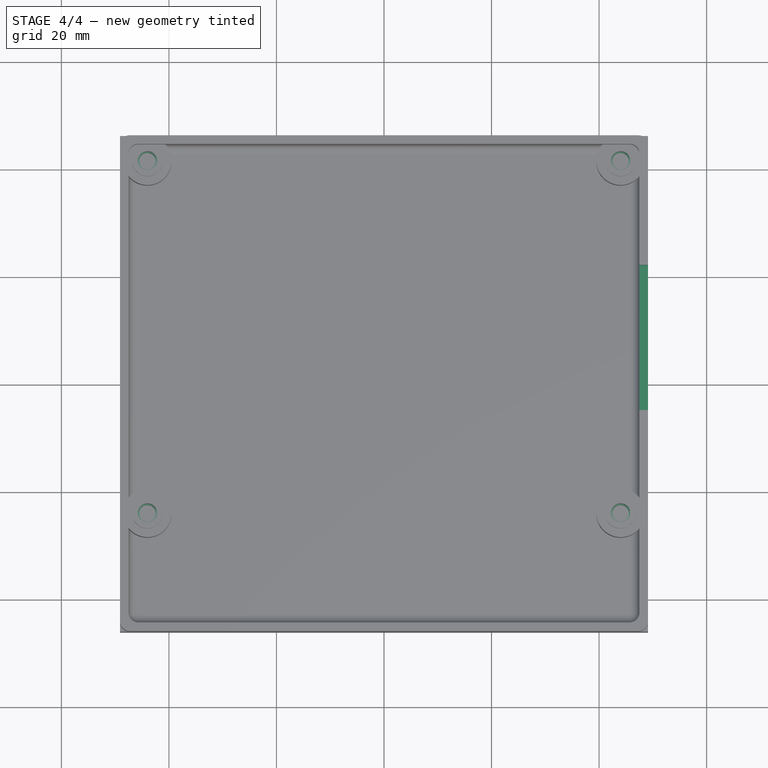
[diagram: stage 4 of 4 — top view after this stage's code; geometry added in this stage tinted green]
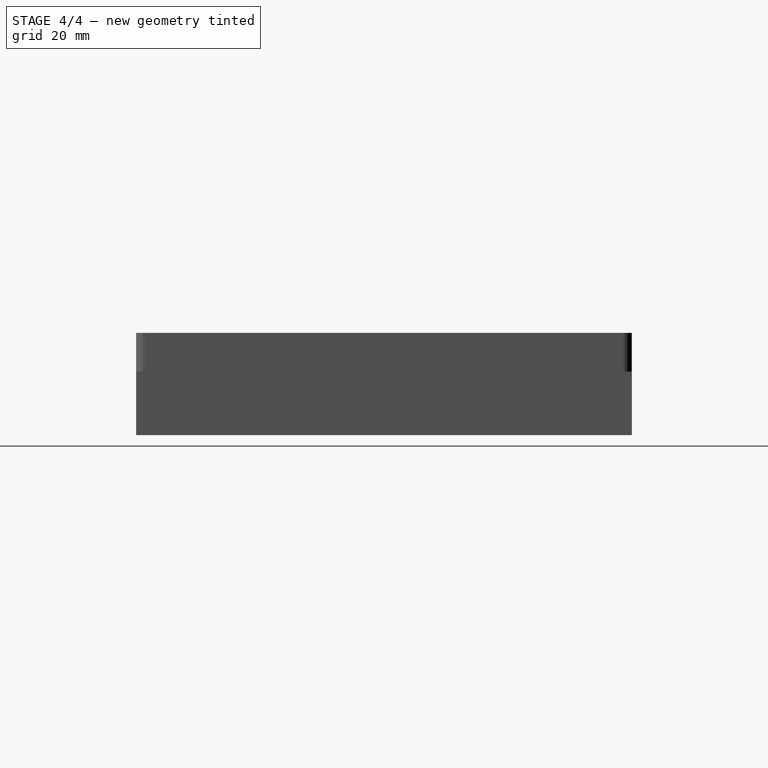
[diagram: stage 4 of 4 — right view after this stage's code; geometry added in this stage tinted green]
FEATURE [PartDesign::Pad] Pad002
  AllowMultiFace = false
  BaseFeature = -> Fillet
  Direction = (1,1,1)
  Length = 6.2
  Length2 = 100
  Profile = -> Sketch002
  Refine = true
  Type = 0
  expr: Length = 8 - Spreadsheet.PanelThickness
FEATURE [Sketcher::SketchObject] Sketch003  label="SDHole"
  FullyConstrained = false
  MapMode = 5
  Placement = pos=(49.1,0,0) rot=(0.57735,0.57735,0.57735;2.0944rad)
  expr: Constraints[8] = <<Dimensions>>.PCBHeight / 2 - 21.5
  sketch-geometry (4):
    g0: LineSegment StartX=22 StartY=19 StartZ=0 EndX=-5 EndY=19 EndZ=0
    g1: LineSegment StartX=-5 StartY=19 StartZ=0 EndX=-5 EndY=14 EndZ=0
    g2: LineSegment StartX=-5 StartY=14 StartZ=0 EndX=22 EndY=14 EndZ=0
    g3: LineSegment StartX=22 StartY=14 StartZ=0 EndX=22 EndY=19 EndZ=0
  constraints (11):
    c: Coincident(g0,g1)
    c: Coincident(g1,g2)
    c: Coincident(g2,g3)
    c: Coincident(g3,g0)
    c: Horizontal(g0)
    c: Horizontal(g2)
    c: Vertical(g1)
    c: Vertical(g3)
    c: DistanceX(g-1,g0) = 22
    c: DistanceX(g0,g0) = 27
    c: DistanceY(g1,g1) = 5
FEATURE [PartDesign::Pocket] Pocket
  AllowMultiFace = false
  BaseFeature = -> Pad002
  Length = 1.6
  Length2 = 100
  Profile = -> Sketch003
  Type = 0
  expr: Length = <<Dimensions>>.WallThickness
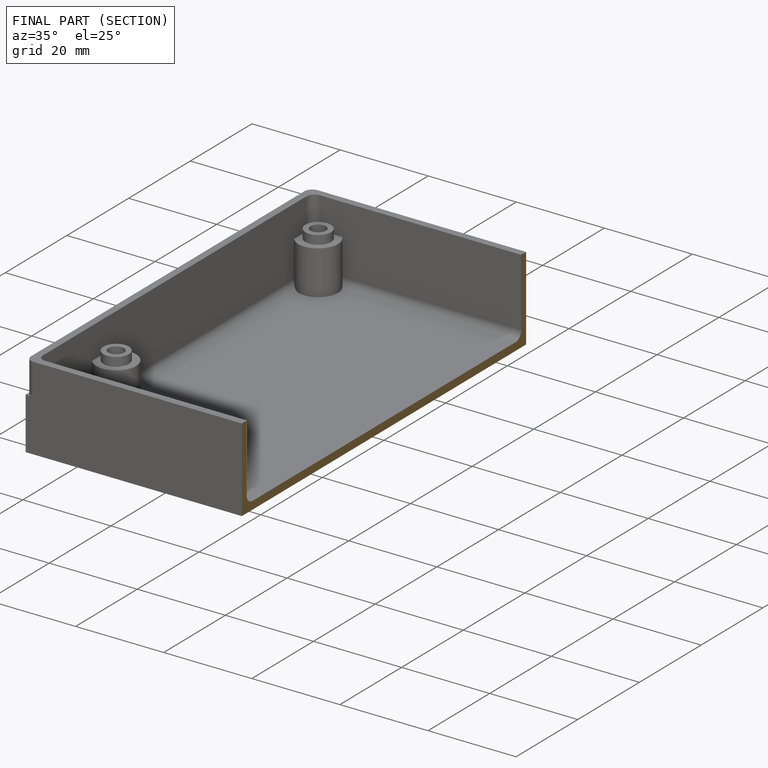
[diagram: finished part — half-section view (interior)]
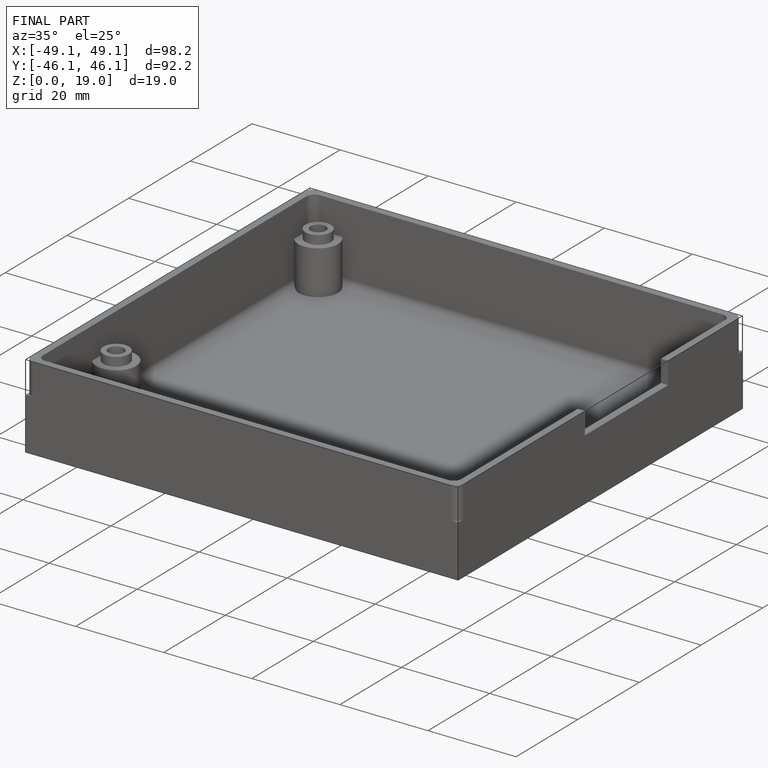
[diagram: finished part — iso view with bounding-box wireframe]
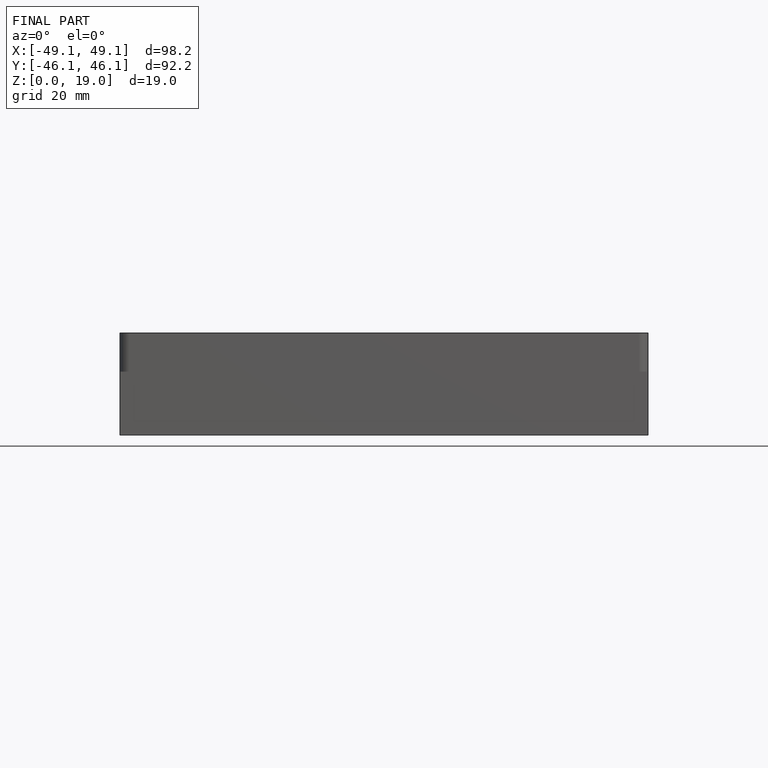
[diagram: finished part — front view with bounding-box wireframe]
